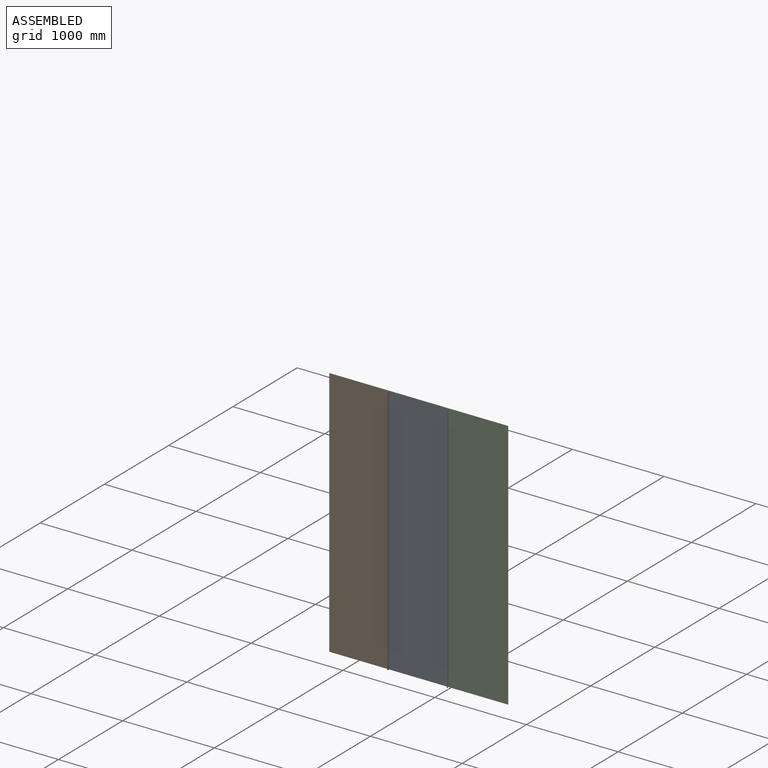
[diagram: assembled view]
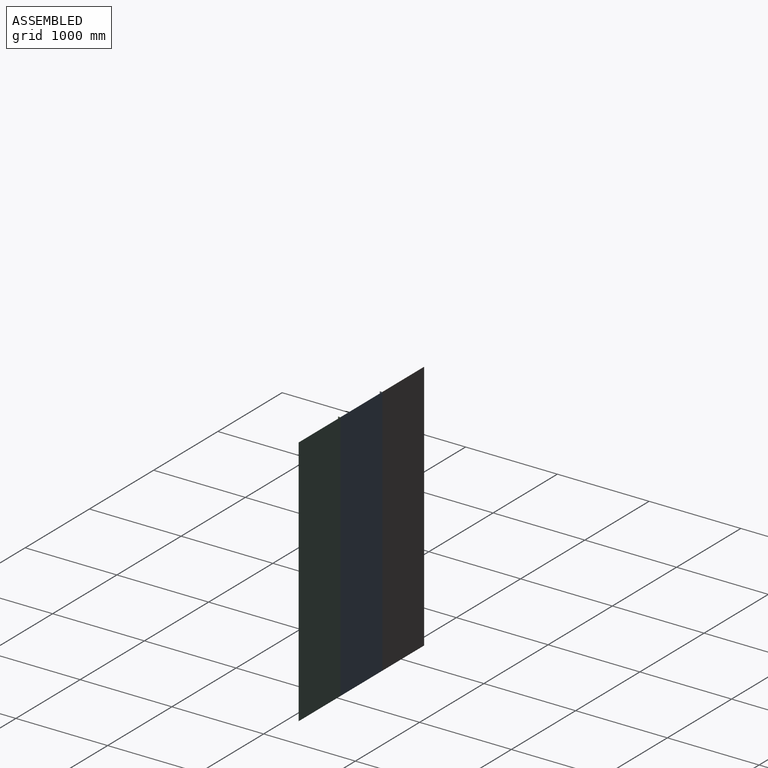
[diagram: assembled view, second angle]
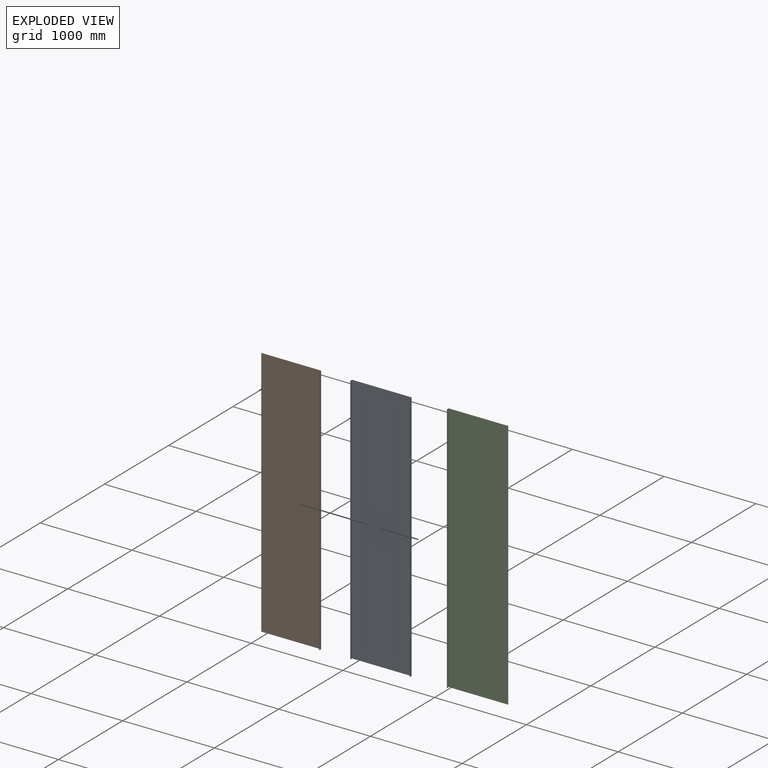
[diagram: exploded view]
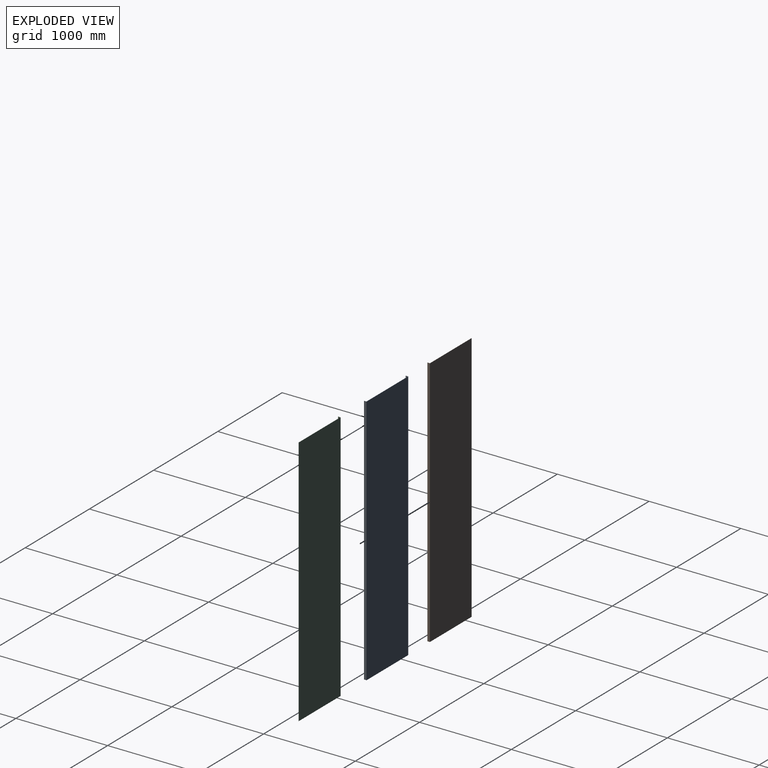
[diagram: exploded view, second angle]
ASSEMBLY  parts=3 mates=6
PART A: 10 faces, bbox 650x27x2745 mm
  f0: plane 2745x646mm, normal (0,-1,0), area 1773270mm2, adj f1,f3,f6,f8
  f1: plane 650x27mm, normal (0,0,1), area 1400mm2, adj f0,f2,f4,f5,f6,f7,f8,f9
  f2: plane 2745x27mm, normal (-1,0,0), area 74115mm2, adj f1,f3,f5,f7
  f3: plane 650x27mm, normal (0,0,-1), area 1400mm2, adj f0,f2,f4,f5,f6,f7,f8,f9
  f4: plane 2745x27mm, normal (1,0,0), area 74115mm2, adj f1,f3,f5,f9
  f5: plane 2745x650mm, normal (0,1,0), area 1784250mm2, adj f1,f2,f3,f4
  f6: plane 2745x25mm, normal (1,0,0), area 68625mm2, adj f0,f1,f3,f7
  f7: plane 2745x2mm, normal (0,-1,0), area 5490mm2, adj f1,f2,f3,f6
  f8: plane 2745x25mm, normal (-1,0,0), area 68625mm2, adj f0,f1,f3,f9
  f9: plane 2745x2mm, normal (0,-1,0), area 5490mm2, adj f1,f3,f4,f8
PART B: 8 faces, bbox 650x27x2745 mm
  f0: plane 2745x27mm, normal (1,0,0), area 74115mm2, adj f1,f3,f5,f7
  f1: plane 650x27mm, normal (0,0,1), area 1350mm2, adj f0,f2,f4,f5,f6,f7
  f2: plane 2745x2mm, normal (-1,0,0), area 5490mm2, adj f1,f3,f4,f5
  f3: plane 650x27mm, normal (0,0,-1), area 1350mm2, adj f0,f2,f4,f5,f6,f7
  f4: plane 2745x648mm, normal (0,-1,0), area 1778760mm2, adj f1,f2,f3,f6
  f5: plane 2745x650mm, normal (0,1,0), area 1784250mm2, adj f0,f1,f2,f3
  f6: plane 2745x25mm, normal (-1,0,0), area 68625mm2, adj f1,f3,f4,f7
  f7: plane 2745x2mm, normal (0,-1,0), area 5490mm2, adj f0,f1,f3,f6
PART C: 8 faces, bbox 650x27x2745 mm
  f0: plane 2745x648mm, normal (0,-1,0), area 1778760mm2, adj f1,f3,f4,f6
  f1: plane 650x27mm, normal (0,0,1), area 1350mm2, adj f0,f2,f4,f5,f6,f7
  f2: plane 2745x27mm, normal (-1,0,0), area 74115mm2, adj f1,f3,f5,f7
  f3: plane 650x27mm, normal (0,0,-1), area 1350mm2, adj f0,f2,f4,f5,f6,f7
  f4: plane 2745x2mm, normal (1,0,0), area 5490mm2, adj f0,f1,f3,f5
  f5: plane 2745x650mm, normal (0,1,0), area 1784250mm2, adj f1,f2,f3,f4
  f6: plane 2745x25mm, normal (1,0,0), area 68625mm2, adj f0,f1,f3,f7
  f7: plane 2745x2mm, normal (0,-1,0), area 5490mm2, adj f1,f2,f3,f6
PLACE A t=(-287.61,165,-124.9)mm
PLACE B t=(-937.61,165,-124.9)mm
PLACE C t=(362.39,165,-124.9)mm
MATE planar B.f0 <-> A.f2  axis (1,0,0) through (-612.61,151.5,-124.9)mm
MATE planar B.f5 <-> A.f5  axis (0,1,0) through (-937.61,165,-124.9)mm
MATE planar C.f1 <-> A.f1  axis (0,0,1) through (350.39,163.5,1247.6)mm
MATE planar C.f5 <-> A.f5  axis (0,1,0) through (362.39,165,-124.9)mm
MATE planar B.f1 <-> A.f1  axis (0,0,1) through (-925.61,163.5,1247.6)mm
MATE planar A.f4 <-> C.f2  axis (1,0,0) through (37.39,151.5,-124.9)mm
